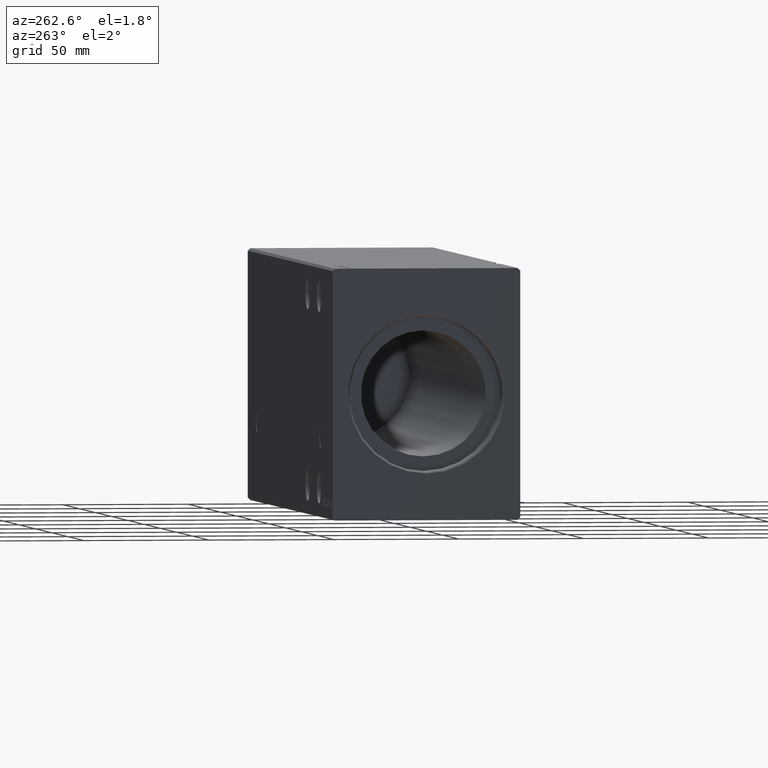
[diagram: clean part render]
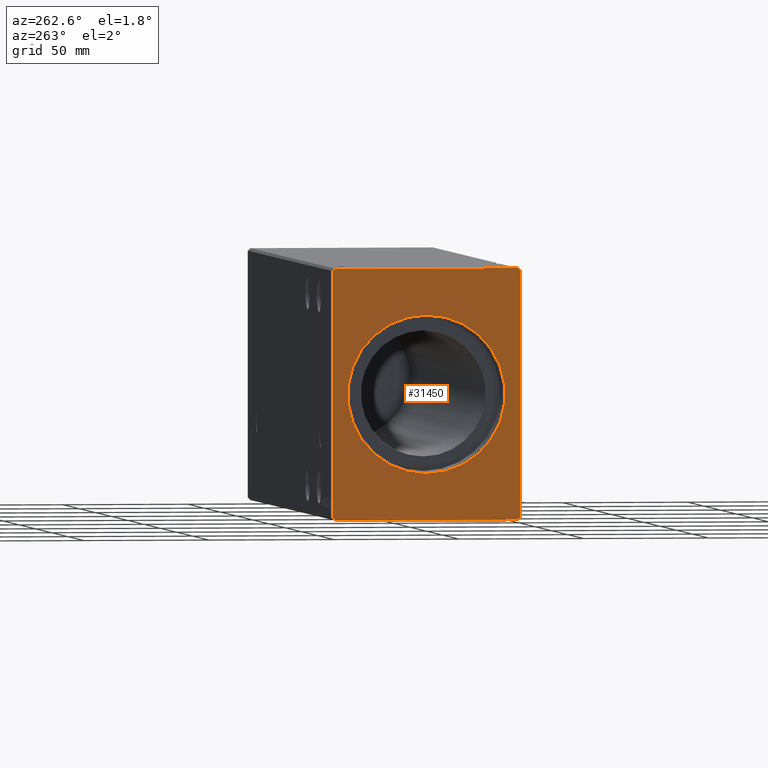
[diagram: same view with one face highlighted and labeled with its STEP entity id]
A machine part, auxiliary view. The second image highlights one B-rep face of the part: STEP entity #31450.
In plain terms, the highlighted planar face has unit normal (1, 0, 0).
Its self-contained STEP definition (entity closure, byte-faithful):
#401 = CARTESIAN_POINT ( 'NONE',  ( 0.000000000000000000, -36.50000000000001421, 49.99999999999998579 ) ) ;
#1355 = VERTEX_POINT ( 'NONE', #20717 ) ;
#1898 = VECTOR ( 'NONE', #26337, 1000.000000000000114 ) ;
#2335 = FACE_BOUND ( 'NONE', #14813, .T. ) ;
#2924 = VECTOR ( 'NONE', #33310, 1000.000000000000000 ) ;
#4076 = ORIENTED_EDGE ( 'NONE', *, *, #21177, .T. ) ;
#4244 = DIRECTION ( 'NONE',  ( 0.000000000000000000, 0.7071067811865474617, 0.7071067811865474617 ) ) ;
#4326 = ORIENTED_EDGE ( 'NONE', *, *, #19946, .T. ) ;
#4428 = ORIENTED_EDGE ( 'NONE', *, *, #32980, .F. ) ;
#4656 = CARTESIAN_POINT ( 'NONE',  ( 0.000000000000000000, 36.50000000000000711, -50.00000000000000000 ) ) ;
#5071 = VERTEX_POINT ( 'NONE', #23481 ) ;
#5382 = ORIENTED_EDGE ( 'NONE', *, *, #24360, .F. ) ;
#5415 = EDGE_CURVE ( 'NONE', #1355, #16785, #32805, .T. ) ;
#5759 = VERTEX_POINT ( 'NONE', #31389 ) ;
#6195 = CARTESIAN_POINT ( 'NONE',  ( 0.000000000000000000, -36.50000000000000711, -50.00000000000000000 ) ) ;
#6669 = VECTOR ( 'NONE', #34541, 1000.000000000000000 ) ;
#6747 = ORIENTED_EDGE ( 'NONE', *, *, #34613, .F. ) ;
#6865 = CARTESIAN_POINT ( 'NONE',  ( 0.000000000000000000, 37.50000000000000711, 49.00000000000000000 ) ) ;
#7587 = EDGE_LOOP ( 'NONE', ( #11825, #8998, #30741, #5382, #18481, #21976, #6747, #4428 ) ) ;
#7731 = CARTESIAN_POINT ( 'NONE',  ( 0.000000000000000000, 36.50000000000000711, 50.00000000000000000 ) ) ;
#8261 = VECTOR ( 'NONE', #40517, 1000.000000000000000 ) ;
#8998 = ORIENTED_EDGE ( 'NONE', *, *, #31874, .F. ) ;
#9193 = CARTESIAN_POINT ( 'NONE',  ( 0.000000000000000000, -36.50000000000001421, 49.99999999999998579 ) ) ;
#9928 = AXIS2_PLACEMENT_3D ( 'NONE', #42018, #29267, #22680 ) ;
#10139 = EDGE_CURVE ( 'NONE', #26923, #11929, #24584, .T. ) ;
#11514 = VECTOR ( 'NONE', #35772, 1000.000000000000114 ) ;
#11825 = ORIENTED_EDGE ( 'NONE', *, *, #5415, .F. ) ;
#11929 = VERTEX_POINT ( 'NONE', #29929 ) ;
#12571 = CARTESIAN_POINT ( 'NONE',  ( 0.000000000000000000, 0.000000000000000000, 0.000000000000000000 ) ) ;
#12923 = VERTEX_POINT ( 'NONE', #34117 ) ;
#12999 = DIRECTION ( 'NONE',  ( 0.000000000000000000, 1.000000000000000000, 0.000000000000000000 ) ) ;
#13018 = CARTESIAN_POINT ( 'NONE',  ( 0.000000000000000000, 37.50000000000000711, -49.00000000000000000 ) ) ;
#13456 = EDGE_CURVE ( 'NONE', #5759, #18521, #33797, .T. ) ;
#14277 = VERTEX_POINT ( 'NONE', #19321 ) ;
#14660 = VECTOR ( 'NONE', #12999, 1000.000000000000000 ) ;
#14813 = EDGE_LOOP ( 'NONE', ( #4076, #4326 ) ) ;
#15477 = AXIS2_PLACEMENT_3D ( 'NONE', #25511, #28915, #41868 ) ;
#16349 = LINE ( 'NONE', #401, #1898 ) ;
#16785 = VERTEX_POINT ( 'NONE', #7731 ) ;
#17574 = CARTESIAN_POINT ( 'NONE',  ( 0.000000000000000000, -37.50000000000001421, 48.99999999999998579 ) ) ;
#17991 = CARTESIAN_POINT ( 'NONE',  ( 0.000000000000000000, -37.50000000000001421, 48.99999999999998579 ) ) ;
#18155 = VECTOR ( 'NONE', #28817, 1000.000000000000114 ) ;
#18481 = ORIENTED_EDGE ( 'NONE', *, *, #22415, .F. ) ;
#18521 = VERTEX_POINT ( 'NONE', #13018 ) ;
#19321 = CARTESIAN_POINT ( 'NONE',  ( 0.000000000000000000, 3.851514183318426405E-15, -31.45000000000000639 ) ) ;
#19946 = EDGE_CURVE ( 'NONE', #14277, #12923, #26647, .T. ) ;
#20717 = CARTESIAN_POINT ( 'NONE',  ( 0.000000000000000000, 37.50000000000000711, 49.00000000000000000 ) ) ;
#21177 = EDGE_CURVE ( 'NONE', #12923, #14277, #30287, .T. ) ;
#21571 = LINE ( 'NONE', #27740, #6669 ) ;
#21976 = ORIENTED_EDGE ( 'NONE', *, *, #10139, .F. ) ;
#22012 = CARTESIAN_POINT ( 'NONE',  ( 0.000000000000000000, -37.50000000000001421, -49.00000000000000000 ) ) ;
#22415 = EDGE_CURVE ( 'NONE', #11929, #5071, #41770, .T. ) ;
#22680 = DIRECTION ( 'NONE',  ( 0.000000000000000000, 0.000000000000000000, -1.000000000000000000 ) ) ;
#23481 = CARTESIAN_POINT ( 'NONE',  ( 0.000000000000000000, -36.50000000000000711, -50.00000000000000000 ) ) ;
#24360 = EDGE_CURVE ( 'NONE', #5071, #5759, #32763, .T. ) ;
#24584 = LINE ( 'NONE', #17991, #8261 ) ;
#25511 = CARTESIAN_POINT ( 'NONE',  ( 0.000000000000000000, 0.000000000000000000, 0.000000000000000000 ) ) ;
#26337 = DIRECTION ( 'NONE',  ( 0.000000000000000000, -0.7071067811865474617, -0.7071067811865474617 ) ) ;
#26647 = CIRCLE ( 'NONE', #30740, 31.45000000000000639 ) ;
#26923 = VERTEX_POINT ( 'NONE', #17574 ) ;
#27740 = CARTESIAN_POINT ( 'NONE',  ( 0.000000000000000000, 36.50000000000000711, 50.00000000000000000 ) ) ;
#28817 = DIRECTION ( 'NONE',  ( 0.000000000000000000, 0.7071067811865500152, -0.7071067811865451302 ) ) ;
#28915 = DIRECTION ( 'NONE',  ( 1.000000000000000000, 0.000000000000000000, 0.000000000000000000 ) ) ;
#29267 = DIRECTION ( 'NONE',  ( 1.000000000000000000, 0.000000000000000000, 0.000000000000000000 ) ) ;
#29352 = DIRECTION ( 'NONE',  ( 1.000000000000000000, 0.000000000000000000, 0.000000000000000000 ) ) ;
#29929 = CARTESIAN_POINT ( 'NONE',  ( 0.000000000000000000, -37.50000000000001421, -49.00000000000000000 ) ) ;
#30287 = CIRCLE ( 'NONE', #9928, 31.45000000000000639 ) ;
#30740 = AXIS2_PLACEMENT_3D ( 'NONE', #12571, #29352, #35727 ) ;
#30741 = ORIENTED_EDGE ( 'NONE', *, *, #13456, .F. ) ;
#31389 = CARTESIAN_POINT ( 'NONE',  ( 0.000000000000000000, 36.50000000000000711, -50.00000000000000000 ) ) ;
#31450 = ADVANCED_FACE ( 'NONE', ( #2335, #34876 ), #35494, .F. ) ;
#31874 = EDGE_CURVE ( 'NONE', #18521, #1355, #34152, .T. ) ;
#32763 = LINE ( 'NONE', #6195, #14660 ) ;
#32805 = LINE ( 'NONE', #6865, #11514 ) ;
#32980 = EDGE_CURVE ( 'NONE', #16785, #39316, #21571, .T. ) ;
#33310 = DIRECTION ( 'NONE',  ( 0.000000000000000000, 0.000000000000000000, 1.000000000000000000 ) ) ;
#33797 = LINE ( 'NONE', #4656, #38090 ) ;
#34117 = CARTESIAN_POINT ( 'NONE',  ( 0.000000000000000000, 0.000000000000000000, 31.45000000000000639 ) ) ;
#34152 = LINE ( 'NONE', #36696, #2924 ) ;
#34541 = DIRECTION ( 'NONE',  ( 0.000000000000000000, -1.000000000000000000, -1.901066822988281457E-16 ) ) ;
#34613 = EDGE_CURVE ( 'NONE', #39316, #26923, #16349, .T. ) ;
#34876 = FACE_OUTER_BOUND ( 'NONE', #7587, .T. ) ;
#35494 = PLANE ( 'NONE',  #15477 ) ;
#35727 = DIRECTION ( 'NONE',  ( 0.000000000000000000, 0.000000000000000000, -1.000000000000000000 ) ) ;
#35772 = DIRECTION ( 'NONE',  ( 0.000000000000000000, -0.7071067811865474617, 0.7071067811865474617 ) ) ;
#36696 = CARTESIAN_POINT ( 'NONE',  ( 0.000000000000000000, 37.50000000000000711, -49.00000000000000000 ) ) ;
#38090 = VECTOR ( 'NONE', #4244, 1000.000000000000114 ) ;
#39316 = VERTEX_POINT ( 'NONE', #9193 ) ;
#40517 = DIRECTION ( 'NONE',  ( 0.000000000000000000, 0.000000000000000000, -1.000000000000000000 ) ) ;
#41770 = LINE ( 'NONE', #22012, #18155 ) ;
#41868 = DIRECTION ( 'NONE',  ( 0.000000000000000000, 0.000000000000000000, -1.000000000000000000 ) ) ;
#42018 = CARTESIAN_POINT ( 'NONE',  ( 0.000000000000000000, 0.000000000000000000, 0.000000000000000000 ) ) ;